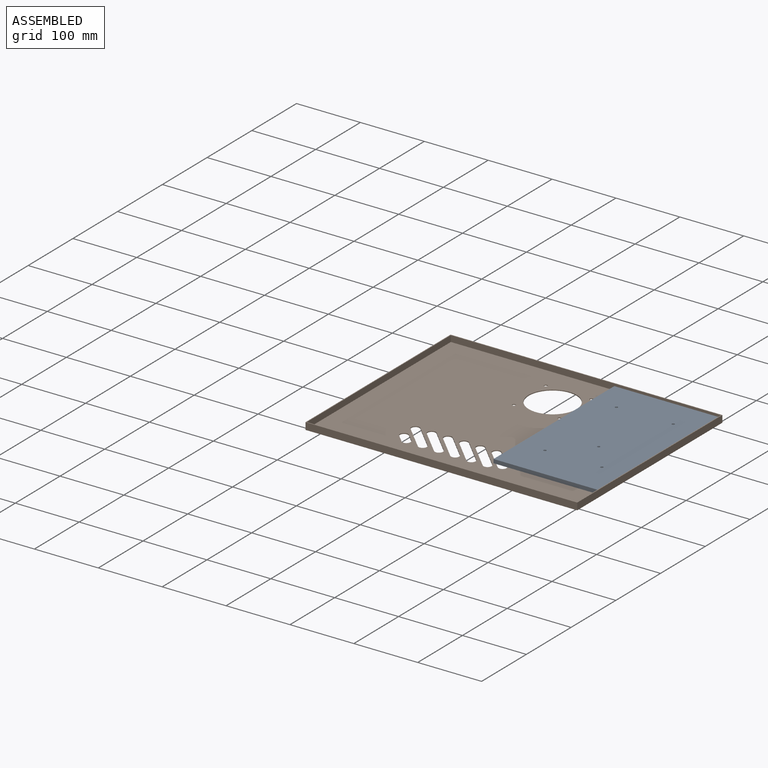
[diagram: assembled view]
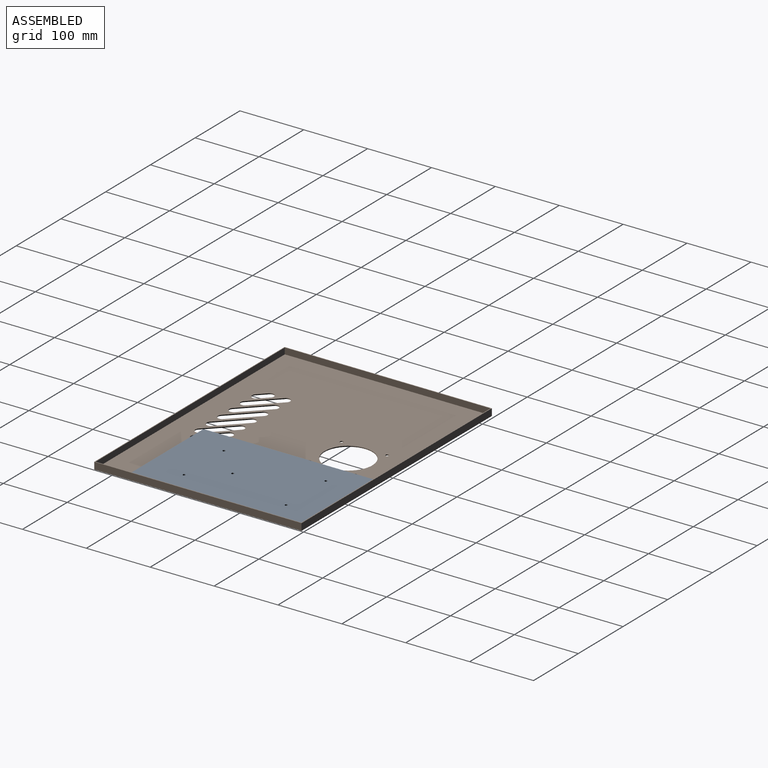
[diagram: assembled view, second angle]
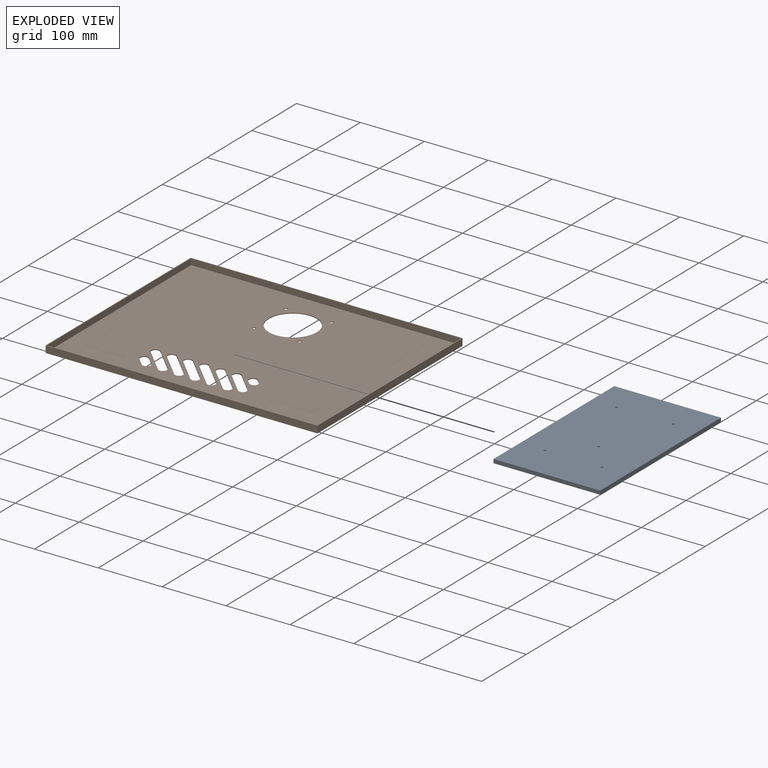
[diagram: exploded view]
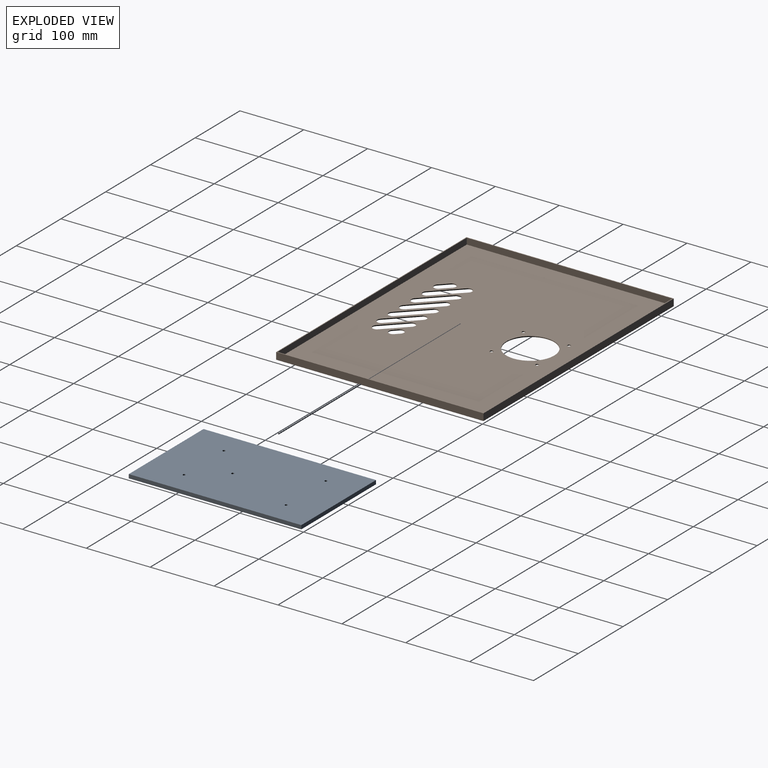
[diagram: exploded view, second angle]
ASSEMBLY  parts=2 mates=3
PART A: 11 faces, bbox 270x167x6 mm
  f0: plane 270x6mm, normal (0,1,0), area 1620mm2, adj f1,f8,f9,f10
  f1: plane 167x6mm, normal (-1,0,0), area 1002mm2, adj f0,f2,f9,f10
  f2: plane 270x6mm, normal (0,-1,0), area 1620mm2, adj f1,f8,f9,f10
  f3: cylinder r=2mm len=6mm, axis (0,0,-1), area 75.4mm2, adj f9,f10
  f4: cylinder r=2mm len=6mm, axis (0,0,-1), area 75.4mm2, adj f9,f10
  f5: cylinder r=2mm len=6mm, axis (0,0,-1), area 75.4mm2, adj f9,f10
  f6: cylinder r=2mm len=6mm, axis (0,0,-1), area 75.4mm2, adj f9,f10
  f7: cylinder r=2mm len=6mm, axis (0,0,-1), area 75.4mm2, adj f9,f10
  f8: plane 167x6mm, normal (1,0,0), area 1002mm2, adj f0,f2,f9,f10
  f9: plane 270x167mm, normal (0,0,1), area 45027.2mm2, adj f0,f1,f2,f3,f4,f5,f6,f7
  f10: plane 270x167mm, normal (0,0,-1), area 45027.2mm2, adj f0,f1,f2,f3,f4,f5,f6,f7
PART B: 48 faces, bbox 425.5x324.5x10.9 mm
  f0: plane 425.45x10.92mm, normal (0,1,0), area 4646.8mm2, adj f1,f40,f42,f47
  f1: plane 324.49x10.92mm, normal (-1,0,0), area 3544mm2, adj f0,f2,f42,f47
  f2: plane 425.45x10.92mm, normal (0,-1,0), area 4646.8mm2, adj f1,f40,f42,f47
  f3: cylinder r=6.35mm len=10.84mm, axis (0,0,-1), area 25.3mm2, adj f4,f27,f41,f42
  f4: plane 38.1x38.1mm, normal (-0.71,-0.71,0), area 68.4mm2, adj f3,f5,f41,f42
  f5: cylinder r=6.35mm len=10.84mm, axis (0,0,-1), area 25.3mm2, adj f4,f27,f41,f42
  f6: cylinder r=6.35mm len=10.84mm, axis (0,0,-1), area 25.3mm2, adj f7,f28,f41,f42
  f7: plane 12.7x12.7mm, normal (-0.71,-0.71,0), area 22.8mm2, adj f6,f8,f41,f42
  f8: cylinder r=6.35mm len=10.84mm, axis (0,0,-1), area 25.3mm2, adj f7,f28,f41,f42
  f9: cylinder r=6.35mm len=10.84mm, axis (0,0,-1), area 25.3mm2, adj f10,f29,f41,f42
  f10: plane 38.1x38.1mm, normal (-0.71,-0.71,0), area 68.4mm2, adj f9,f11,f41,f42
  f11: cylinder r=6.35mm len=10.84mm, axis (0,0,-1), area 25.3mm2, adj f10,f29,f41,f42
  f12: cylinder r=6.35mm len=10.84mm, axis (0,0,-1), area 25.3mm2, adj f13,f30,f41,f42
  f13: plane 38.1x38.1mm, normal (-0.71,-0.71,0), area 68.4mm2, adj f12,f14,f41,f42
  f14: cylinder r=6.35mm len=10.84mm, axis (0,0,-1), area 25.3mm2, adj f13,f30,f41,f42
  f15: cylinder r=6.35mm len=10.84mm, axis (0,0,-1), area 25.3mm2, adj f16,f31,f41,f42
  f16: plane 38.1x38.1mm, normal (-0.71,-0.71,0), area 68.4mm2, adj f15,f17,f41,f42
  f17: cylinder r=6.35mm len=10.84mm, axis (0,0,-1), area 25.3mm2, adj f16,f31,f41,f42
  f18: cylinder r=6.35mm len=10.84mm, axis (0,0,-1), area 25.3mm2, adj f19,f32,f41,f42
  f19: plane 38.1x38.1mm, normal (-0.71,-0.71,0), area 68.4mm2, adj f18,f20,f41,f42
  f20: cylinder r=6.35mm len=10.84mm, axis (0,0,-1), area 25.3mm2, adj f19,f32,f41,f42
  f21: cylinder r=6.35mm len=10.84mm, axis (0,0,-1), area 25.3mm2, adj f22,f33,f41,f42
  f22: plane 31.77x31.77mm, normal (-0.71,-0.71,0), area 57.1mm2, adj f21,f23,f41,f42
  f23: cylinder r=6.35mm len=10.84mm, axis (0,0,-1), area 25.3mm2, adj f22,f33,f41,f42
  f24: cylinder r=6.35mm len=10.84mm, axis (0,0,-1), area 25.3mm2, adj f25,f34,f41,f42
  f25: plane 6.37x6.37mm, normal (-0.71,-0.71,0), area 11.4mm2, adj f24,f26,f41,f42
  f26: cylinder r=6.35mm len=10.84mm, axis (0,0,-1), area 25.3mm2, adj f25,f34,f41,f42
  f27: plane 38.1x38.1mm, normal (0.71,0.71,0), area 68.4mm2, adj f3,f5,f41,f42
  f28: plane 12.7x12.7mm, normal (0.71,0.71,0), area 22.8mm2, adj f6,f8,f41,f42
  f29: plane 38.1x38.1mm, normal (0.71,0.71,0), area 68.4mm2, adj f9,f11,f41,f42
  f30: plane 38.1x38.1mm, normal (0.71,0.71,0), area 68.4mm2, adj f12,f14,f41,f42
  f31: plane 38.1x38.1mm, normal (0.71,0.71,0), area 68.4mm2, adj f15,f17,f41,f42
  f32: plane 38.1x38.1mm, normal (0.71,0.71,0), area 68.4mm2, adj f18,f20,f41,f42
  f33: plane 31.77x31.77mm, normal (0.71,0.71,0), area 57.1mm2, adj f21,f23,f41,f42
  f34: plane 6.37x6.37mm, normal (0.71,0.71,0), area 11.4mm2, adj f24,f26,f41,f42
  f35: cylinder r=37.5mm len=75mm, axis (0,0,-1), area 299.2mm2, adj f41,f42
  f36: cylinder r=2.5mm len=5mm, axis (0,0,-1), area 19.9mm2, adj f41,f42
  f37: cylinder r=2.5mm len=5mm, axis (0,0,-1), area 19.9mm2, adj f41,f42
  f38: cylinder r=2.5mm len=5mm, axis (0,0,-1), area 19.9mm2, adj f41,f42
  f39: cylinder r=2.5mm len=5mm, axis (0,0,-1), area 19.9mm2, adj f41,f42
  f40: plane 324.49x10.92mm, normal (1,0,0), area 3544mm2, adj f0,f2,f42,f47
  f41: plane 422.91x321.95mm, normal (0,0,1), area 126309.2mm2, adj f3,f4,f5,f6,f7,f8,f9,f10
  f42: plane 425.45x324.49mm, normal (0,0,-1), area 128207.6mm2, adj f0,f1,f2,f3,f4,f5,f6,f7
  f43: plane 422.91x9.65mm, normal (0,1,0), area 4081.9mm2, adj f41,f44,f46,f47
  f44: plane 321.95x9.65mm, normal (1,0,0), area 3107.4mm2, adj f41,f43,f45,f47
  f45: plane 422.91x9.65mm, normal (0,-1,0), area 4081.9mm2, adj f41,f44,f46,f47
  f46: plane 321.95x9.65mm, normal (-1,0,0), area 3107.4mm2, adj f41,f43,f45,f47
  f47: plane 425.45x324.49mm, normal (0,0,1), area 1898.4mm2, adj f0,f1,f2,f40,f43,f44,f45,f46
PLACE A rot(axis=(0.71,0.71,0),180deg) t=(127.96,69.49,7.27)mm
PLACE B t=(0,43.52,0)mm
MATE planar A.f0 <-> B.f46  axis (1,0,0) through (211.46,69.49,4.27)mm
MATE planar A.f9 <-> B.f41  axis (0,0,-1) through (127.95,69.5,1.27)mm
MATE planar A.f8 <-> B.f45  axis (0,1,0) through (127.96,204.49,4.27)mm
